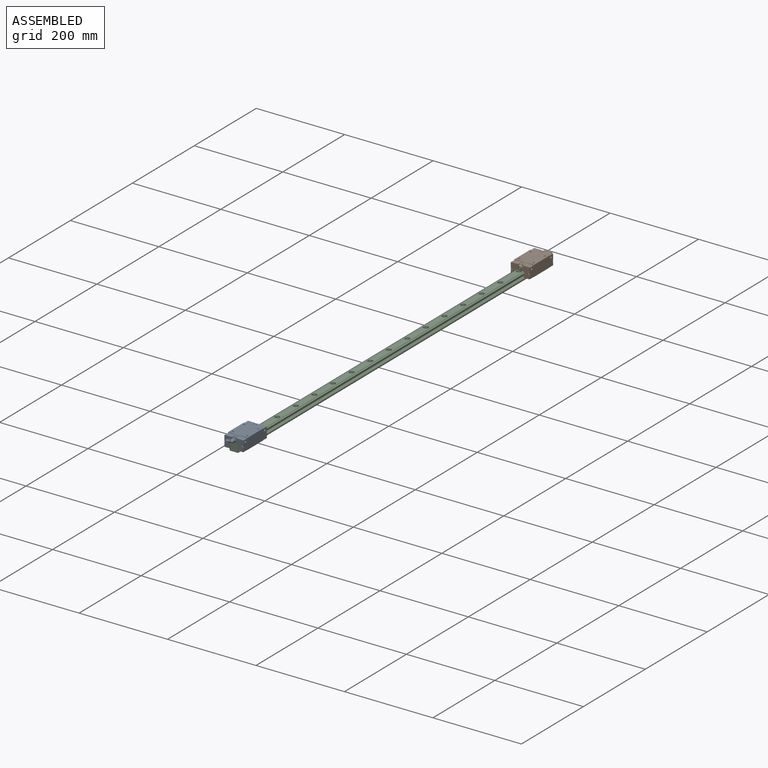
[diagram: assembled view]
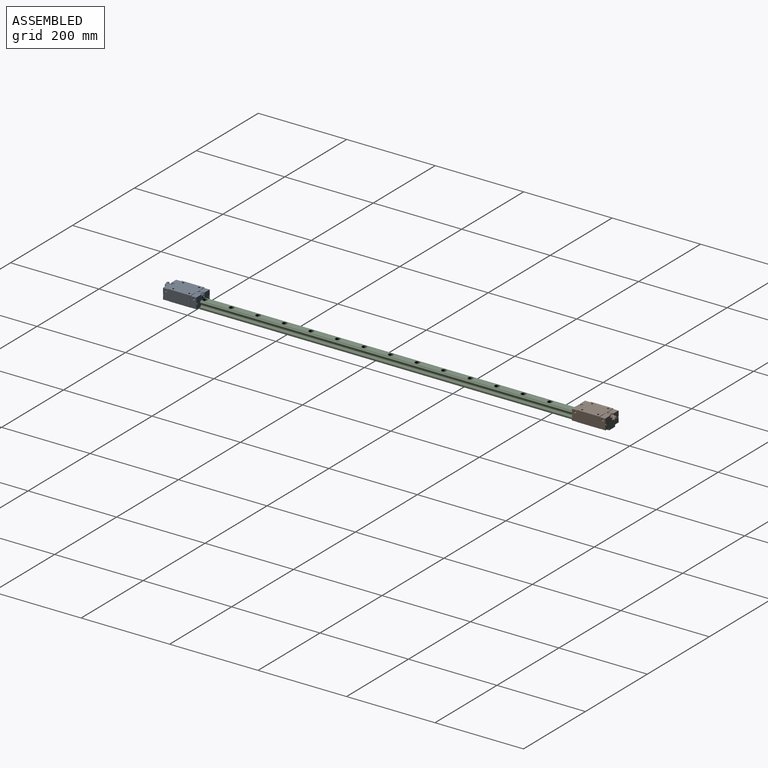
[diagram: assembled view, second angle]
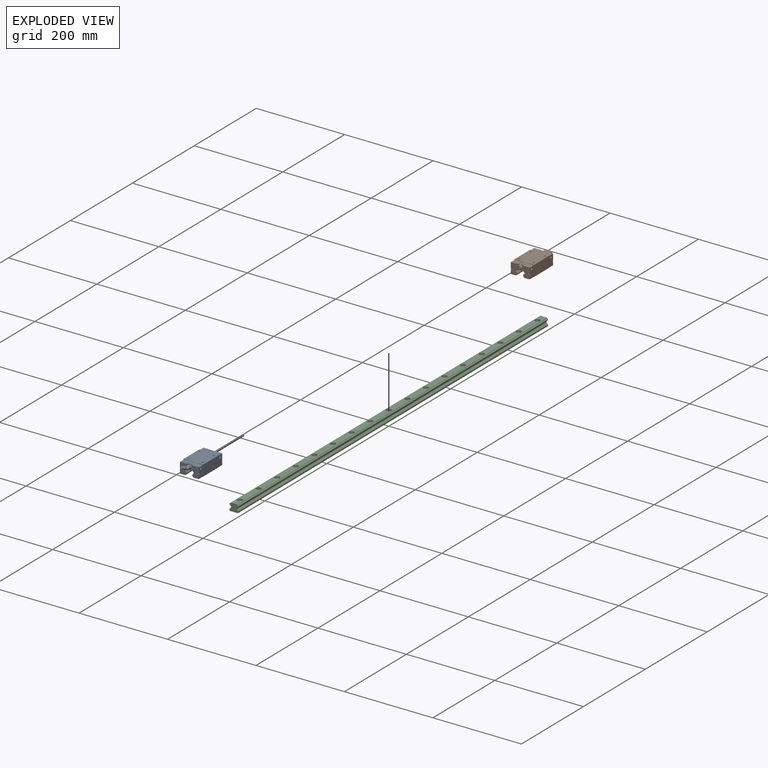
[diagram: exploded view]
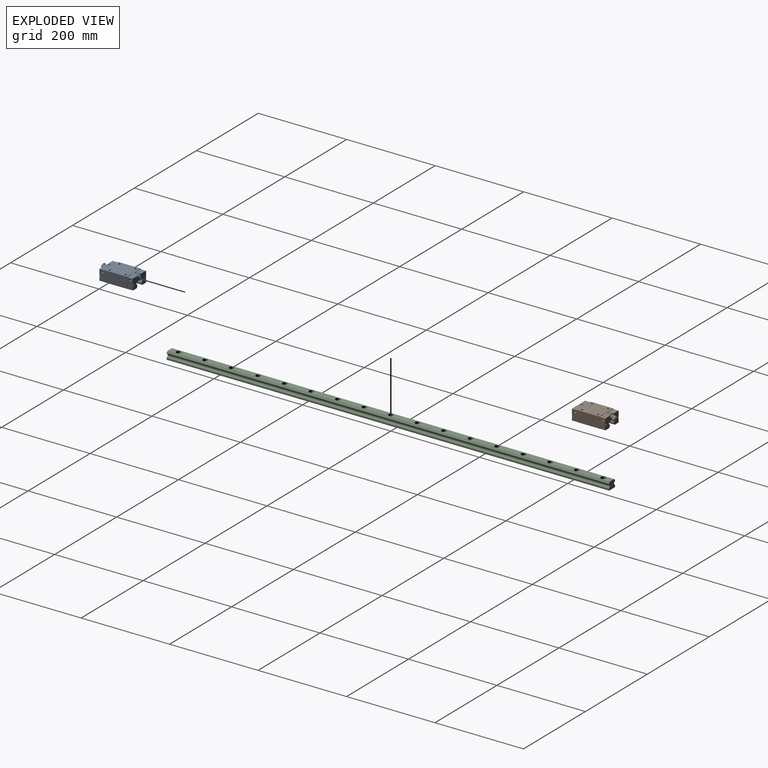
[diagram: exploded view, second angle]
ASSEMBLY  parts=3 mates=2
PART A: 289 faces, bbox 45.6x92x27 mm
  f0: torus R=4.47mm, axis (-0.92,-0.38,0), area 40mm2, adj f19,f20,f22,f141,f142,f143,f144,f145
  f1: cylinder r=2.1mm len=6mm, axis (0,0,-1), area 79.2mm2, adj f2,f264
  f2: cone r=1.05mm half-angle=59deg, axis (0,0,1), area 16.2mm2, adj f1
  f3: cylinder r=2.1mm len=6mm, axis (0,0,-1), area 79.2mm2, adj f4,f264
  f4: cone r=1.05mm half-angle=59deg, axis (0,0,1), area 16.2mm2, adj f3
  f5: cylinder r=2.1mm len=6mm, axis (0,0,-1), area 79.2mm2, adj f6,f263
  f6: cone r=1.05mm half-angle=59deg, axis (0,0,1), area 16.2mm2, adj f5
  f7: cylinder r=2.1mm len=6mm, axis (0,0,-1), area 79.2mm2, adj f8,f263
  f8: cone r=1.05mm half-angle=59deg, axis (0,0,1), area 16.2mm2, adj f7
  f9: cylinder r=3.65mm len=7.3mm, axis (0,0,-1), area 18.2mm2, adj f205,f210
  f10: cylinder r=2.6mm len=6.7mm, axis (-1,0,0), area 109.4mm2, adj f204,f216
  f11: cylinder r=2.6mm len=6.7mm, axis (-1,0,0), area 109.4mm2, adj f203,f212
  f12: cylinder r=2.5mm len=5mm, axis (0,1,0), area 8.6mm2, adj f184,f185,f186,f188
  f13: cylinder r=2.5mm len=5mm, axis (0,1,0), area 8.6mm2, adj f181,f182,f183,f184
  f14: cone r=1.22mm half-angle=5deg, axis (0,1,0), area 19.6mm2, adj f15,f180,f183
  f15: cone r=1.17mm half-angle=73.3deg, axis (0,1,0), area 15.3mm2, adj f14,f168,f169,f170,f171,f172,f173,f174
  f16: cone r=1.22mm half-angle=5deg, axis (0,1,0), area 19.6mm2, adj f17,f166,f188
  f17: cone r=1.17mm half-angle=73.3deg, axis (0,1,0), area 15.3mm2, adj f16,f154,f155,f156,f157,f158,f159,f160
  f18: cone r=2.49mm half-angle=22.5deg, axis (0.92,0.38,0), area 46.5mm2, adj f19,f151
  f19: torus R=0.27mm, axis (-0.92,-0.38,0), area 40mm2, adj f0,f18
  f20: torus R=2.96mm, axis (-0.92,-0.38,0), area 0.2mm2, adj f0,f141,f142
  f21: torus R=2.96mm, axis (-0.92,-0.38,0), area 13.3mm2, adj f141,f142,f143,f144,f145,f146,f152
  f22: torus R=2.96mm, axis (-0.92,-0.38,0), area 0.2mm2, adj f0,f145,f146
  f23: sphere r=3.92mm, area 83.4mm2, adj f24,f152
  f24: cylinder r=3.92mm len=7.85mm, axis (0,1,0), area 87mm2, adj f23,f138,f152
  f25: cone r=4.37mm half-angle=45deg, axis (0,1,0), area 0.9mm2, adj f130,f136,f138
  f26: cone r=4.37mm half-angle=45deg, axis (0,1,0), area 0.9mm2, adj f131,f138,f140
  f27: cone r=4.37mm half-angle=45deg, axis (0,-1,0), area 0.9mm2, adj f130,f136,f192
  f28: cone r=4.37mm half-angle=45deg, axis (0,-1,0), area 0.9mm2, adj f131,f140,f192
  f29: cylinder r=3.65mm len=7.3mm, axis (0,0,-1), area 18.2mm2, adj f101,f114
  f30: cylinder r=2.6mm len=6.7mm, axis (1,0,0), area 109.4mm2, adj f100,f120
  f31: cylinder r=2.6mm len=6.7mm, axis (1,0,0), area 109.4mm2, adj f99,f116
  f32: cylinder r=4.9mm len=9.8mm, axis (0,1,0), area 10.2mm2, adj f33,f88
  f33: torus R=1.93mm, axis (0,-1,0), area 109.6mm2, adj f32,f78,f79,f80,f81,f82,f83
  f34: cylinder r=2.5mm len=5mm, axis (0,-1,0), area 8.6mm2, adj f71,f72,f73,f87
  f35: cylinder r=2.5mm len=5mm, axis (0,-1,0), area 8.6mm2, adj f56,f75,f76,f87
  f36: cone r=1.22mm half-angle=5deg, axis (0,-1,0), area 19.6mm2, adj f37,f57,f71
  f37: cone r=1.17mm half-angle=73.3deg, axis (0,-1,0), area 15.3mm2, adj f36,f59,f60,f61,f62,f63,f64,f65
  f38: cone r=1.22mm half-angle=5deg, axis (0,-1,0), area 19.6mm2, adj f39,f42,f56
  f39: cone r=1.17mm half-angle=73.3deg, axis (0,-1,0), area 15.3mm2, adj f38,f44,f45,f46,f47,f48,f49,f50
  f40: plane 24.4x15.71mm, normal (0,-1,0), area 0.3mm2, adj f74,f91,f92,f93,f96,f110,f112,f116
  f41: plane 24.4x15.71mm, normal (0,-1,0), area 0.3mm2, adj f77,f90,f93,f94,f95,f111,f113,f115
  f42: plane 0.99x0.05mm, normal (0,-1,0), area 0mm2, adj f38,f77
  f43: plane 2.6x2.6mm, normal (0,1,0), area 2.4mm2, adj f44,f45,f46,f47,f48,f49,f50,f51
  f44: plane 1.17x0.58mm, normal (0,0,1), area 0.6mm2, adj f39,f43,f47,f49
  f45: plane 1.17x0.58mm, normal (0,0,-1), area 0.6mm2, adj f39,f43,f46,f48
  f46: plane 1.49x1.47mm, normal (-1,0,0), area 1.3mm2, adj f39,f43,f45,f54
  f47: plane 1.49x1.47mm, normal (-1,0,0), area 1.3mm2, adj f39,f43,f44,f50
  f48: plane 1.49x1.47mm, normal (1,0,0), area 1.3mm2, adj f39,f43,f45,f51
  f49: plane 1.49x1.47mm, normal (1,0,0), area 1.3mm2, adj f39,f43,f44,f52
  f50: plane 1.49x1.47mm, normal (0,0,1), area 1.3mm2, adj f39,f43,f47,f53
  f51: plane 1.49x1.47mm, normal (0,0,-1), area 1.3mm2, adj f39,f43,f48,f55
  f52: plane 1.49x1.47mm, normal (0,0,1), area 1.3mm2, adj f39,f43,f49,f55
  f53: plane 1.17x0.58mm, normal (-1,0,0), area 0.6mm2, adj f39,f43,f50,f54
  f54: plane 1.49x1.47mm, normal (0,0,-1), area 1.3mm2, adj f39,f43,f46,f53
  f55: plane 1.12x0.54mm, normal (1,0,0), area 0.6mm2, adj f39,f43,f51,f52
  f56: plane 5x4.9mm, normal (0,1,0), area 3mm2, adj f35,f38,f75,f76,f77
  f57: plane 0.99x0.05mm, normal (0,-1,0), area 0mm2, adj f36,f74
  f58: plane 2.6x2.6mm, normal (0,1,0), area 2.4mm2, adj f59,f60,f61,f62,f63,f64,f65,f66
  f59: plane 1.17x0.58mm, normal (0,0,1), area 0.6mm2, adj f37,f58,f62,f64
  f60: plane 1.17x0.58mm, normal (0,0,-1), area 0.6mm2, adj f37,f58,f61,f63
  f61: plane 1.49x1.47mm, normal (-1,0,0), area 1.3mm2, adj f37,f58,f60,f69
  f62: plane 1.49x1.47mm, normal (-1,0,0), area 1.3mm2, adj f37,f58,f59,f65
  f63: plane 1.49x1.47mm, normal (1,0,0), area 1.3mm2, adj f37,f58,f60,f66
  f64: plane 1.49x1.47mm, normal (1,0,0), area 1.3mm2, adj f37,f58,f59,f67
  f65: plane 1.49x1.47mm, normal (0,0,1), area 1.3mm2, adj f37,f58,f62,f68
  f66: plane 1.49x1.47mm, normal (0,0,-1), area 1.3mm2, adj f37,f58,f63,f70
  f67: plane 1.49x1.47mm, normal (0,0,1), area 1.3mm2, adj f37,f58,f64,f70
  f68: plane 1.17x0.58mm, normal (-1,0,0), area 0.6mm2, adj f37,f58,f65,f69
  f69: plane 1.49x1.47mm, normal (0,0,-1), area 1.3mm2, adj f37,f58,f61,f68
  f70: plane 1.12x0.54mm, normal (1,0,0), area 0.6mm2, adj f37,f58,f66,f67
  f71: plane 5x4.9mm, normal (0,1,0), area 3mm2, adj f34,f36,f72,f73,f74
  f72: plane 2.4x1.1mm, normal (0,0,-1), area 2.6mm2, adj f34,f71,f74,f87
  f73: plane 2.4x1.1mm, normal (0,0,1), area 2.6mm2, adj f34,f71,f74,f87
  f74: plane 23.4x2.5mm, normal (1,0,0), area 53mm2, adj f40,f57,f71,f72,f73,f87,f92,f96
  f75: plane 2.4x1.1mm, normal (0,0,-1), area 2.6mm2, adj f35,f56,f77,f87
  f76: plane 2.4x1.1mm, normal (0,0,1), area 2.6mm2, adj f35,f56,f77,f87
  f77: plane 23.4x2.5mm, normal (-1,0,0), area 53mm2, adj f41,f42,f56,f75,f76,f87,f94,f95
  f78: plane 2.67x2.48mm, normal (1,0,0), area 5.8mm2, adj f33,f79,f82,f84
  f79: plane 2.5x2mm, normal (0.5,0,0.87), area 5.8mm2, adj f33,f78,f80,f84
  f80: plane 2.5x2mm, normal (-0.5,0,0.87), area 5.8mm2, adj f33,f79,f81,f84
  f81: plane 2.67x2.48mm, normal (-1,0,0), area 5.8mm2, adj f33,f80,f83,f84
  f82: plane 2.5x2mm, normal (0.5,0,-0.87), area 5.8mm2, adj f33,f78,f83,f84
  f83: plane 2.5x2mm, normal (-0.5,0,-0.87), area 5.8mm2, adj f33,f81,f82,f84
  f84: plane 4.62x4mm, normal (0,1,0), area 13.9mm2, adj f78,f79,f80,f81,f82,f83
  f85: plane 5x1.1mm, normal (1,0,0), area 5.5mm2, adj f87,f88,f89,f93
  f86: plane 5x1.1mm, normal (-1,0,0), area 5.5mm2, adj f87,f88,f89,f93
  f87: plane 43x24.4mm, normal (0,1,0), area 707.4mm2, adj f34,f35,f72,f73,f74,f75,f76,f77
  f88: plane 10x10mm, normal (0,1,0), area 13.8mm2, adj f32,f85,f86,f89,f93
  f89: cylinder r=5mm len=10mm, axis (0,-1,0), area 17.3mm2, adj f85,f86,f87,f88
  f90: plane 11.53x2.5mm, normal (0,0,-1), area 28.8mm2, adj f41,f87,f95,f220
  f91: plane 11.53x2.5mm, normal (0,0,-1), area 28.8mm2, adj f40,f87,f96,f246
  f92: plane 2.5x0.5mm, normal (0.71,0,0.71), area 1.8mm2, adj f40,f74,f87,f93
  f93: plane 42x2.5mm, normal (0,0,1), area 94mm2, adj f40,f41,f85,f86,f87,f88,f92,f94
  f94: plane 2.5x0.5mm, normal (-0.71,0,0.71), area 1.8mm2, adj f41,f77,f87,f93
  f95: plane 2.5x0.5mm, normal (-0.71,0,-0.71), area 1.8mm2, adj f41,f77,f87,f90
  f96: plane 2.5x0.5mm, normal (0.71,0,-0.71), area 1.8mm2, adj f40,f74,f87,f91
  f97: plane 6.33x0.8mm, normal (0,-1,0), area 4.7mm2, adj f110,f246,f248,f250
  f98: plane 6.33x0.8mm, normal (0,-1,0), area 4.7mm2, adj f111,f220,f249,f251
  f99: plane 5.2x5.2mm, normal (1,0,0), area 21.2mm2, adj f31
  f100: plane 5.2x5.2mm, normal (-1,0,0), area 21.2mm2, adj f30
  f101: plane 7.3x7.3mm, normal (0,0,1), area 41.9mm2, adj f29
  f102: cylinder r=0.5mm len=75.5mm, axis (0,-1,0), area 31.2mm2, adj f87,f184,f241,f242
  f103: cylinder r=0.5mm len=75.5mm, axis (0,-1,0), area 22.5mm2, adj f87,f184,f240,f241
  f104: cylinder r=0.5mm len=75.5mm, axis (0,-1,0), area 22.3mm2, adj f87,f184,f235,f236
  f105: cylinder r=0.5mm len=75.5mm, axis (0,-1,0), area 31mm2, adj f87,f184,f234,f235
  f106: cylinder r=0.5mm len=75.5mm, axis (0,-1,0), area 31mm2, adj f87,f184,f231,f232
  f107: cylinder r=0.5mm len=75.5mm, axis (0,-1,0), area 22.3mm2, adj f87,f184,f230,f231
  f108: cylinder r=0.5mm len=75.5mm, axis (0,-1,0), area 22.5mm2, adj f87,f184,f225,f226
  f109: cylinder r=0.5mm len=75.5mm, axis (0,-1,0), area 31.2mm2, adj f87,f184,f224,f225
  f110: plane 11.53x10mm, normal (0,0,-1), area 115.3mm2, adj f40,f97,f122,f246,f254
  f111: plane 11.53x10mm, normal (0,0,-1), area 115.3mm2, adj f41,f98,f121,f220,f254
  f112: plane 10x0.8mm, normal (0.71,0,0.71), area 11.2mm2, adj f40,f114,f118,f123,f254
  f113: plane 10x0.8mm, normal (-0.71,0,0.71), area 11.2mm2, adj f41,f114,f115,f123,f254
  f114: plane 10x10mm, normal (0,0,1), area 58.1mm2, adj f29,f112,f113,f123,f254
  f115: plane 15.2x10mm, normal (0,0,1), area 152mm2, adj f41,f113,f119,f254
  f116: plane 23.39x10mm, normal (1,0,0), area 212.7mm2, adj f31,f40,f117,f122,f254
  f117: plane 10x0.5mm, normal (0.71,0,0.71), area 7.1mm2, adj f40,f116,f118,f254
  f118: plane 15.2x10mm, normal (0,0,1), area 152mm2, adj f40,f112,f117,f254
  f119: plane 10x0.5mm, normal (-0.71,0,0.71), area 7.1mm2, adj f41,f115,f120,f254
  f120: plane 23.39x10mm, normal (-1,0,0), area 212.7mm2, adj f30,f41,f119,f121,f254
  f121: plane 10x0.5mm, normal (-0.71,0,-0.71), area 7.1mm2, adj f41,f111,f120,f254
  f122: plane 10x0.5mm, normal (0.71,0,-0.71), area 7.1mm2, adj f40,f110,f116,f254
  f123: plane 11.58x0.79mm, normal (0,1,0), area 8.5mm2, adj f93,f112,f113,f114
  f124: plane 24.4x15.71mm, normal (0,1,0), area 0.3mm2, adj f189,f195,f196,f197,f200,f206,f208,f212
  f125: plane 24.4x15.71mm, normal (0,1,0), area 0.3mm2, adj f187,f194,f197,f198,f199,f207,f209,f211
  f126: cone r=4.37mm half-angle=45deg, axis (0,-1,0), area 0.9mm2, adj f136,f139,f192
  f127: cone r=4.37mm half-angle=45deg, axis (0,-1,0), area 0.9mm2, adj f139,f140,f192
  f128: cone r=4.37mm half-angle=45deg, axis (0,-1,0), area 0.9mm2, adj f131,f137,f192
  f129: cone r=4.37mm half-angle=45deg, axis (0,-1,0), area 0.9mm2, adj f130,f137,f192
  f130: plane 4.15x4.15mm, normal (0.87,0,-0.5), area 17.3mm2, adj f25,f27,f129,f135,f136,f137,f138,f192
  f131: plane 4.15x4.15mm, normal (-0.87,0,-0.5), area 17.3mm2, adj f26,f28,f128,f132,f137,f138,f140,f192
  f132: cone r=4.37mm half-angle=45deg, axis (0,1,0), area 0.9mm2, adj f131,f137,f138
  f133: cone r=4.37mm half-angle=45deg, axis (0,1,0), area 0.9mm2, adj f138,f139,f140
  f134: cone r=4.37mm half-angle=45deg, axis (0,1,0), area 0.9mm2, adj f136,f138,f139
  f135: cone r=4.37mm half-angle=45deg, axis (0,1,0), area 0.9mm2, adj f130,f137,f138
  f136: plane 4.15x4.15mm, normal (0.87,0,0.5), area 17.3mm2, adj f25,f27,f126,f130,f134,f138,f139,f192
  f137: plane 4.77x4.15mm, normal (0,0,-1), area 17.3mm2, adj f128,f129,f130,f131,f132,f135,f138,f192
  f138: plane 8.24x8mm, normal (0,-1,0), area 4mm2, adj f24,f25,f26,f130,f131,f132,f133,f134
  f139: plane 4.77x4.15mm, normal (0,0,1), area 17.3mm2, adj f126,f127,f133,f134,f136,f138,f140,f192
  f140: plane 4.15x4.15mm, normal (-0.87,0,0.5), area 17.3mm2, adj f26,f28,f127,f131,f133,f138,f139,f192
  f141: plane 3.49x2.46mm, normal (0.33,-0.8,0.5), area 7.2mm2, adj f0,f20,f21,f142,f144,f147
  f142: plane 3.49x2.46mm, normal (0.33,-0.8,-0.5), area 7.2mm2, adj f0,f20,f21,f141,f143,f150
  f143: plane 4.28x2.94mm, normal (0,0,-1), area 7.2mm2, adj f0,f21,f142,f145,f149,f150
  f144: plane 4.28x2.94mm, normal (0,0,1), area 7.2mm2, adj f0,f21,f141,f146,f147,f148
  f145: plane 3.49x2.46mm, normal (-0.33,0.8,-0.5), area 7.2mm2, adj f0,f21,f22,f143,f146,f149
  f146: plane 3.49x2.46mm, normal (-0.33,0.8,0.5), area 7.2mm2, adj f0,f21,f22,f144,f145,f148
  f147: torus R=2.96mm, axis (-0.92,-0.38,0), area 0.2mm2, adj f0,f141,f144
  f148: torus R=2.96mm, axis (-0.92,-0.38,0), area 0.2mm2, adj f0,f144,f146
  f149: torus R=2.96mm, axis (-0.92,-0.38,0), area 0.2mm2, adj f0,f143,f145
  f150: torus R=2.96mm, axis (-0.92,-0.38,0), area 0.2mm2, adj f0,f142,f143
  f151: plane 3.84x3.55mm, normal (-0.92,-0.38,0), area 11.6mm2, adj f18
  f152: plane 7.5x7.05mm, normal (0.92,0.38,0), area 13.6mm2, adj f21,f23,f24
  f153: plane 2.6x2.6mm, normal (0,-1,0), area 2.4mm2, adj f154,f155,f156,f157,f158,f159,f160,f161
  f154: plane 1.17x0.58mm, normal (0,0,1), area 0.6mm2, adj f17,f153,f157,f159
  f155: plane 1.17x0.58mm, normal (0,0,-1), area 0.6mm2, adj f17,f153,f156,f158
  f156: plane 1.49x1.47mm, normal (1,0,0), area 1.3mm2, adj f17,f153,f155,f164
  f157: plane 1.49x1.47mm, normal (1,0,0), area 1.3mm2, adj f17,f153,f154,f160
  f158: plane 1.49x1.47mm, normal (-1,0,0), area 1.3mm2, adj f17,f153,f155,f161
  f159: plane 1.49x1.47mm, normal (-1,0,0), area 1.3mm2, adj f17,f153,f154,f162
  f160: plane 1.49x1.47mm, normal (0,0,1), area 1.3mm2, adj f17,f153,f157,f163
  f161: plane 1.49x1.47mm, normal (0,0,-1), area 1.3mm2, adj f17,f153,f158,f165
  f162: plane 1.49x1.47mm, normal (0,0,1), area 1.3mm2, adj f17,f153,f159,f165
  f163: plane 1.17x0.58mm, normal (1,0,0), area 0.6mm2, adj f17,f153,f160,f164
  f164: plane 1.49x1.47mm, normal (0,0,-1), area 1.3mm2, adj f17,f153,f156,f163
  f165: plane 1.12x0.54mm, normal (-1,0,0), area 0.6mm2, adj f17,f153,f161,f162
  f166: plane 0.99x0.05mm, normal (0,1,0), area 0mm2, adj f16,f187
  f167: plane 2.6x2.6mm, normal (0,-1,0), area 2.4mm2, adj f168,f169,f170,f171,f172,f173,f174,f175
  f168: plane 1.17x0.58mm, normal (0,0,1), area 0.6mm2, adj f15,f167,f171,f173
  f169: plane 1.17x0.58mm, normal (0,0,-1), area 0.6mm2, adj f15,f167,f170,f172
  f170: plane 1.49x1.47mm, normal (1,0,0), area 1.3mm2, adj f15,f167,f169,f178
  f171: plane 1.49x1.47mm, normal (1,0,0), area 1.3mm2, adj f15,f167,f168,f174
  f172: plane 1.49x1.47mm, normal (-1,0,0), area 1.3mm2, adj f15,f167,f169,f175
  f173: plane 1.49x1.47mm, normal (-1,0,0), area 1.3mm2, adj f15,f167,f168,f176
  f174: plane 1.49x1.47mm, normal (0,0,1), area 1.3mm2, adj f15,f167,f171,f177
  f175: plane 1.49x1.47mm, normal (0,0,-1), area 1.3mm2, adj f15,f167,f172,f179
  f176: plane 1.49x1.47mm, normal (0,0,1), area 1.3mm2, adj f15,f167,f173,f179
  f177: plane 1.17x0.58mm, normal (1,0,0), area 0.6mm2, adj f15,f167,f174,f178
  f178: plane 1.49x1.47mm, normal (0,0,-1), area 1.3mm2, adj f15,f167,f170,f177
  f179: plane 1.12x0.54mm, normal (-1,0,0), area 0.6mm2, adj f15,f167,f175,f176
  f180: plane 0.99x0.05mm, normal (0,1,0), area 0mm2, adj f14,f189
  f181: plane 2.4x1.1mm, normal (0,0,1), area 2.6mm2, adj f13,f183,f184,f189
  f182: plane 2.4x1.1mm, normal (0,0,-1), area 2.6mm2, adj f13,f183,f184,f189
  f183: plane 5x4.9mm, normal (0,-1,0), area 3mm2, adj f13,f14,f181,f182,f189
  f184: plane 43x24.4mm, normal (0,-1,0), area 707.4mm2, adj f12,f13,f102,f103,f104,f105,f106,f107
  f185: plane 2.4x1.1mm, normal (0,0,-1), area 2.6mm2, adj f12,f184,f187,f188
  f186: plane 2.4x1.1mm, normal (0,0,1), area 2.6mm2, adj f12,f184,f187,f188
  f187: plane 23.4x2.5mm, normal (1,0,0), area 53mm2, adj f125,f166,f184,f185,f186,f188,f198,f199
  f188: plane 5x4.9mm, normal (0,-1,0), area 3mm2, adj f12,f16,f185,f186,f187
  f189: plane 23.4x2.5mm, normal (-1,0,0), area 53mm2, adj f124,f180,f181,f182,f183,f184,f196,f200
  f190: plane 5x1.1mm, normal (-1,0,0), area 5.5mm2, adj f184,f192,f193,f197
  f191: plane 5x1.1mm, normal (1,0,0), area 5.5mm2, adj f184,f192,f193,f197
  f192: plane 10x10mm, normal (0,-1,0), area 36.9mm2, adj f27,f28,f126,f127,f128,f129,f130,f131
  f193: cylinder r=5mm len=10mm, axis (0,1,0), area 17.3mm2, adj f184,f190,f191,f192
  f194: plane 11.53x2.5mm, normal (0,0,-1), area 28.8mm2, adj f125,f184,f199,f246
  f195: plane 11.53x2.5mm, normal (0,0,-1), area 28.8mm2, adj f124,f184,f200,f220
  f196: plane 2.5x0.5mm, normal (-0.71,0,0.71), area 1.8mm2, adj f124,f184,f189,f197
  f197: plane 42x2.5mm, normal (0,0,1), area 94mm2, adj f124,f125,f184,f190,f191,f192,f196,f198
  f198: plane 2.5x0.5mm, normal (0.71,0,0.71), area 1.8mm2, adj f125,f184,f187,f197
  f199: plane 2.5x0.5mm, normal (0.71,0,-0.71), area 1.8mm2, adj f125,f184,f187,f194
  f200: plane 2.5x0.5mm, normal (-0.71,0,-0.71), area 1.8mm2, adj f124,f184,f189,f195
  f201: plane 6.33x0.8mm, normal (0,1,0), area 4.7mm2, adj f206,f220,f249,f251
  f202: plane 6.33x0.8mm, normal (0,1,0), area 4.7mm2, adj f207,f246,f248,f250
  f203: plane 5.2x5.2mm, normal (-1,0,0), area 21.2mm2, adj f11
  f204: plane 5.2x5.2mm, normal (1,0,0), area 21.2mm2, adj f10
  f205: plane 7.3x7.3mm, normal (0,0,1), area 41.9mm2, adj f9
  f206: plane 11.53x10mm, normal (0,0,-1), area 115.3mm2, adj f124,f201,f218,f220,f247
  f207: plane 11.53x10mm, normal (0,0,-1), area 115.3mm2, adj f125,f202,f217,f246,f247
  f208: plane 10x0.8mm, normal (-0.71,0,0.71), area 11.2mm2, adj f124,f210,f214,f219,f247
  f209: plane 10x0.8mm, normal (0.71,0,0.71), area 11.2mm2, adj f125,f210,f211,f219,f247
  f210: plane 10x10mm, normal (0,0,1), area 58.1mm2, adj f9,f208,f209,f219,f247
  f211: plane 15.2x10mm, normal (0,0,1), area 152mm2, adj f125,f209,f215,f247
  f212: plane 23.39x10mm, normal (-1,0,0), area 212.7mm2, adj f11,f124,f213,f218,f247
  f213: plane 10x0.5mm, normal (-0.71,0,0.71), area 7.1mm2, adj f124,f212,f214,f247
  f214: plane 15.2x10mm, normal (0,0,1), area 152mm2, adj f124,f208,f213,f247
  f215: plane 10x0.5mm, normal (0.71,0,0.71), area 7.1mm2, adj f125,f211,f216,f247
  f216: plane 23.39x10mm, normal (1,0,0), area 212.7mm2, adj f10,f125,f215,f217,f247
  f217: plane 10x0.5mm, normal (0.71,0,-0.71), area 7.1mm2, adj f125,f207,f216,f247
  f218: plane 10x0.5mm, normal (-0.71,0,-0.71), area 7.1mm2, adj f124,f206,f212,f247
  f219: plane 11.58x0.79mm, normal (0,-1,0), area 8.5mm2, adj f197,f208,f209,f210
  f220: plane 75.5x2.58mm, normal (0.71,0,-0.71), area 218mm2, adj f41,f87,f90,f98,f111,f124,f184,f195
  f221: cylinder r=1mm len=75.5mm, axis (0,1,0), area 59.3mm2, adj f87,f184,f220,f222
  f222: plane 75.5x1.56mm, normal (1,0,0), area 117.8mm2, adj f87,f184,f221,f223
  f223: cylinder r=1mm len=75.5mm, axis (0,1,0), area 59.3mm2, adj f87,f184,f222,f224
  f224: plane 75.5x0.74mm, normal (0.71,0,0.71), area 78.7mm2, adj f87,f109,f184,f223
  f225: cylinder r=2mm len=75.5mm, axis (0,1,0), area 179.6mm2, adj f87,f108,f109,f184
  f226: plane 75.5x0.16mm, normal (0.71,0,0.71), area 17.4mm2, adj f87,f108,f184,f227
  f227: cylinder r=0.5mm len=75.5mm, axis (0,1,0), area 29.6mm2, adj f87,f184,f226,f228
  f228: plane 75.5x1.06mm, normal (1,0,0), area 79.8mm2, adj f87,f184,f227,f229
  f229: cylinder r=0.5mm len=75.5mm, axis (0,1,0), area 29.6mm2, adj f87,f184,f228,f230
  f230: plane 75.5x0.18mm, normal (0.71,0,-0.71), area 18.7mm2, adj f87,f107,f184,f229
  f231: cylinder r=2mm len=75.5mm, axis (0,1,0), area 178.2mm2, adj f87,f106,f107,f184
  f232: plane 75.5x0.4mm, normal (0.71,0,-0.71), area 42.9mm2, adj f87,f106,f184,f233
  f233: plane 75.5x14.46mm, normal (0,0,-1), area 1091.8mm2, adj f87,f184,f232,f234
  f234: plane 75.5x0.4mm, normal (-0.71,0,-0.71), area 42.9mm2, adj f87,f105,f184,f233
  f235: cylinder r=2mm len=75.5mm, axis (0,1,0), area 178.2mm2, adj f87,f104,f105,f184
  f236: plane 75.5x0.18mm, normal (-0.71,0,-0.71), area 18.7mm2, adj f87,f104,f184,f237
  f237: cylinder r=0.5mm len=75.5mm, axis (0,1,0), area 29.6mm2, adj f87,f184,f236,f238
  f238: plane 75.5x1.06mm, normal (-1,0,0), area 79.8mm2, adj f87,f184,f237,f239
  f239: cylinder r=0.5mm len=75.5mm, axis (0,1,0), area 29.6mm2, adj f87,f184,f238,f240
  f240: plane 75.5x0.16mm, normal (-0.71,0,0.71), area 17.4mm2, adj f87,f103,f184,f239
  f241: cylinder r=2mm len=75.5mm, axis (0,1,0), area 179.6mm2, adj f87,f102,f103,f184
  f242: plane 75.5x0.74mm, normal (-0.71,0,0.71), area 78.7mm2, adj f87,f102,f184,f243
  f243: cylinder r=1mm len=75.5mm, axis (0,1,0), area 59.3mm2, adj f87,f184,f242,f244
  f244: plane 75.5x1.56mm, normal (-1,0,0), area 117.8mm2, adj f87,f184,f243,f245
  f245: cylinder r=1mm len=75.5mm, axis (0,1,0), area 59.3mm2, adj f87,f184,f244,f246
  f246: plane 75.5x2.58mm, normal (-0.71,0,-0.71), area 218mm2, adj f40,f87,f91,f97,f110,f125,f184,f194
  f247: plane 44x25.4mm, normal (0,-1,0), area 47.9mm2, adj f206,f207,f208,f209,f210,f211,f212,f213
  f248: plane 50.5x6.33mm, normal (0,0,-1), area 319.6mm2, adj f97,f202,f246,f250
  f249: plane 50.5x6.33mm, normal (0,0,-1), area 319.6mm2, adj f98,f201,f220,f251
  f250: plane 50.5x0.8mm, normal (-1,0,0), area 40.4mm2, adj f97,f202,f247,f248,f253,f254
  f251: plane 50.5x0.8mm, normal (1,0,0), area 40.4mm2, adj f98,f201,f247,f249,f252,f254
  f252: plane 50.5x6.5mm, normal (0,0,-1), area 328.2mm2, adj f247,f251,f254,f271
  f253: plane 50.5x6.5mm, normal (0,0,-1), area 328.2mm2, adj f247,f250,f254,f270
  f254: plane 44x25.4mm, normal (0,1,0), area 47.9mm2, adj f110,f111,f112,f113,f114,f115,f116,f117
  f255: plane 50.5x0.5mm, normal (-0.71,0,0.71), area 35.7mm2, adj f247,f254,f256,f258
  f256: plane 50.5x10mm, normal (0,0,1), area 505mm2, adj f247,f254,f255,f257
  f257: plane 50.5x0.5mm, normal (0.71,0,0.71), area 35.7mm2, adj f247,f254,f256,f261
  f258: plane 50.5x5.13mm, normal (0,0,1), area 258.8mm2, adj f247,f254,f255,f262
  f259: plane 50.5x7.5mm, normal (-1,0,0), area 378.7mm2, adj f247,f254,f265,f267
  f260: plane 50.5x0.5mm, normal (-0.71,0,0.71), area 35.7mm2, adj f247,f254,f261,f263
  f261: plane 50.5x5.13mm, normal (0,0,1), area 258.8mm2, adj f247,f254,f257,f260
  f262: plane 50.5x0.5mm, normal (0.71,0,0.71), area 35.7mm2, adj f247,f254,f258,f264
  f263: plane 50.5x10.38mm, normal (0,0,1), area 496.2mm2, adj f5,f7,f247,f254,f260,f268
  f264: plane 50.5x10.38mm, normal (0,0,1), area 496.2mm2, adj f1,f3,f247,f254,f262,f267
  f265: plane 50.5x0.4mm, normal (0,0,-1), area 20.2mm2, adj f247,f254,f259,f266
  f266: plane 50.5x17.3mm, normal (-1,0,0), area 873.6mm2, adj f247,f254,f265,f271
  f267: plane 50.5x0.5mm, normal (-0.71,0,0.71), area 35.7mm2, adj f247,f254,f259,f264
  f268: plane 50.5x0.5mm, normal (0.71,0,0.71), area 35.7mm2, adj f247,f254,f263,f269
  f269: plane 50.5x24.4mm, normal (1,0,0), area 1232.2mm2, adj f247,f254,f268,f270
  f270: plane 50.5x0.5mm, normal (0.71,0,-0.71), area 35.7mm2, adj f247,f253,f254,f269
  f271: plane 50.5x0.1mm, normal (-0.71,0,-0.71), area 7.1mm2, adj f247,f252,f254,f266
  f272: cylinder r=3mm len=6mm, axis (0,1,0), area 26.4mm2, adj f274,f275
  f273: cylinder r=3.2mm len=6.4mm, axis (0,1,0), area 28.1mm2, adj f274,f275
  f274: plane 6.4x6.4mm, normal (0,-1,0), area 3.9mm2, adj f272,f273
  f275: plane 6.4x6.4mm, normal (0,1,0), area 3.9mm2, adj f272,f273
  f276: cylinder r=1.25mm len=2.5mm, axis (0,1,0), area 3.9mm2, adj f277,f279
  f277: cone r=0.62mm half-angle=17deg, axis (0,-1,0), area 6.6mm2, adj f276,f280
  f278: cylinder r=1.5mm len=3mm, axis (0,-1,0), area 13.2mm2, adj f279,f280
  f279: plane 3x3mm, normal (0,1,0), area 2.2mm2, adj f276,f278
  f280: plane 3x3mm, normal (0,-1,0), area 4.1mm2, adj f277,f278
  f281: cylinder r=1.5mm len=3mm, axis (0,-1,0), area 13.2mm2, adj f284,f285
  f282: cone r=0.62mm half-angle=17deg, axis (0,-1,0), area 6.6mm2, adj f283,f284
  f283: cylinder r=1.25mm len=2.5mm, axis (0,1,0), area 3.9mm2, adj f282,f285
  f284: plane 3x3mm, normal (0,-1,0), area 4.1mm2, adj f281,f282
  f285: plane 3x3mm, normal (0,1,0), area 2.2mm2, adj f281,f283
  f286: cylinder r=3.2mm len=6.4mm, axis (0,-1,0), area 28.1mm2, adj f287,f288
  f287: plane 6.4x6.4mm, normal (0,1,0), area 32.2mm2, adj f286
  f288: plane 6.4x6.4mm, normal (0,-1,0), area 32.2mm2, adj f286
PART B: same geometry as A
PART C: 95 faces, bbox 20x1000x17.5 mm
  f0: plane 1000x1mm, normal (-0.71,0,-0.71), area 1414.2mm2, adj f1,f41,f42,f43
  f1: plane 1000x18mm, normal (0,0,-1), area 17418.4mm2, adj f0,f2,f42,f43,f44,f47,f50,f53
  f2: plane 1000x1mm, normal (0.71,0,-0.71), area 1414.2mm2, adj f1,f3,f42,f43
  f3: plane 1000x2.66mm, normal (1,0,0), area 2656.5mm2, adj f2,f4,f42,f43
  f4: cylinder r=1mm len=1000mm, axis (0,1,0), area 785.4mm2, adj f3,f5,f42,f43
  f5: plane 1000x2.81mm, normal (0.71,0,0.71), area 3979.9mm2, adj f4,f6,f42,f43
  f6: cylinder r=1mm len=1000mm, axis (0,1,0), area 785.4mm2, adj f5,f7,f42,f43
  f7: plane 1000x1.56mm, normal (1,0,0), area 1560.1mm2, adj f6,f8,f42,f43
  f8: cylinder r=1mm len=1000mm, axis (0,1,0), area 785.4mm2, adj f7,f9,f42,f43
  f9: plane 1000x0.74mm, normal (0.71,0,-0.71), area 1042.7mm2, adj f8,f10,f42,f43
  f10: cylinder r=0.5mm len=1000mm, axis (0,1,0), area 413.2mm2, adj f9,f11,f42,f43
  f11: cylinder r=2mm len=1000mm, axis (0,1,0), area 2379.3mm2, adj f10,f12,f42,f43
  f12: cylinder r=0.5mm len=1000mm, axis (0,1,0), area 297.4mm2, adj f11,f13,f42,f43
  f13: plane 1000x0.16mm, normal (0.71,0,-0.71), area 230.4mm2, adj f12,f14,f42,f43
  f14: cylinder r=0.5mm len=1000mm, axis (0,1,0), area 392.7mm2, adj f13,f15,f42,f43
  f15: plane 1000x1.06mm, normal (1,0,0), area 1057.2mm2, adj f14,f16,f42,f43
  f16: cylinder r=0.5mm len=1000mm, axis (0,1,0), area 392.7mm2, adj f15,f17,f42,f43
  f17: plane 1000x0.18mm, normal (0.71,0,0.71), area 247.6mm2, adj f16,f18,f42,f43
  f18: cylinder r=0.5mm len=1000mm, axis (0,1,0), area 295mm2, adj f17,f19,f42,f43
  f19: cylinder r=2mm len=1000mm, axis (0,1,0), area 2360.3mm2, adj f18,f20,f42,f43
  f20: cylinder r=0.5mm len=1000mm, axis (0,1,0), area 410mm2, adj f19,f21,f42,f43
  f21: plane 1000x0.4mm, normal (0.71,0,0.71), area 568.2mm2, adj f20,f22,f42,f43
  f22: plane 1000x14.46mm, normal (0,0,1), area 12771.6mm2, adj f21,f23,f42,f43,f46,f49,f52,f55
  f23: plane 1000x0.4mm, normal (-0.71,0,0.71), area 568.2mm2, adj f22,f24,f42,f43
  f24: cylinder r=0.5mm len=1000mm, axis (0,1,0), area 410mm2, adj f23,f25,f42,f43
  f25: cylinder r=2mm len=1000mm, axis (0,1,0), area 2360.3mm2, adj f24,f26,f42,f43
  f26: cylinder r=0.5mm len=1000mm, axis (0,1,0), area 295mm2, adj f25,f27,f42,f43
  f27: plane 1000x0.18mm, normal (-0.71,0,0.71), area 247.6mm2, adj f26,f28,f42,f43
  f28: cylinder r=0.5mm len=1000mm, axis (0,1,0), area 392.7mm2, adj f27,f29,f42,f43
  f29: plane 1000x1.06mm, normal (-1,0,0), area 1057.2mm2, adj f28,f30,f42,f43
  f30: cylinder r=0.5mm len=1000mm, axis (0,1,0), area 392.7mm2, adj f29,f31,f42,f43
  f31: plane 1000x0.16mm, normal (-0.71,0,-0.71), area 230.4mm2, adj f30,f32,f42,f43
  f32: cylinder r=0.5mm len=1000mm, axis (0,1,0), area 297.4mm2, adj f31,f33,f42,f43
  f33: cylinder r=2mm len=1000mm, axis (0,1,0), area 2379.3mm2, adj f32,f34,f42,f43
  f34: cylinder r=0.5mm len=1000mm, axis (0,1,0), area 413.2mm2, adj f33,f35,f42,f43
  f35: plane 1000x0.74mm, normal (-0.71,0,-0.71), area 1042.7mm2, adj f34,f36,f42,f43
  f36: cylinder r=1mm len=1000mm, axis (0,1,0), area 785.4mm2, adj f35,f37,f42,f43
  f37: plane 1000x1.56mm, normal (-1,0,0), area 1560.1mm2, adj f36,f38,f42,f43
  f38: cylinder r=1mm len=1000mm, axis (0,1,0), area 785.4mm2, adj f37,f39,f42,f43
  f39: plane 1000x2.81mm, normal (-0.71,0,0.71), area 3979.9mm2, adj f38,f40,f42,f43
  f40: cylinder r=1mm len=1000mm, axis (0,1,0), area 785.4mm2, adj f39,f41,f42,f43
  f41: plane 1000x2.66mm, normal (-1,0,0), area 2656.5mm2, adj f0,f40,f42,f43
  f42: plane 20x17.5mm, normal (0,-1,0), area 299.1mm2, adj f0,f1,f2,f3,f4,f5,f6,f7
  f43: plane 20x17.5mm, normal (0,1,0), area 299.1mm2, adj f0,f1,f2,f3,f4,f5,f6,f7
  f44: cylinder r=3.3mm len=11.5mm, axis (0,0,1), area 238.4mm2, adj f1,f45
  f45: plane 11.25x11.25mm, normal (0,0,1), area 65.2mm2, adj f44,f46
  f46: cylinder r=5.62mm len=11.25mm, axis (0,0,1), area 212.1mm2, adj f22,f45
  f47: cylinder r=3.3mm len=11.5mm, axis (0,0,1), area 238.4mm2, adj f1,f48
  f48: plane 11.25x11.25mm, normal (0,0,1), area 65.2mm2, adj f47,f49
  f49: cylinder r=5.62mm len=11.25mm, axis (0,0,1), area 212.1mm2, adj f22,f48
  f50: cylinder r=3.3mm len=11.5mm, axis (0,0,1), area 238.4mm2, adj f1,f51
  f51: plane 11.25x11.25mm, normal (0,0,1), area 65.2mm2, adj f50,f52
  f52: cylinder r=5.62mm len=11.25mm, axis (0,0,1), area 212.1mm2, adj f22,f51
  f53: cylinder r=3.3mm len=11.5mm, axis (0,0,1), area 238.4mm2, adj f1,f54
  f54: plane 11.25x11.25mm, normal (0,0,1), area 65.2mm2, adj f53,f55
  f55: cylinder r=5.62mm len=11.25mm, axis (0,0,1), area 212.1mm2, adj f22,f54
  f56: cylinder r=3.3mm len=11.5mm, axis (0,0,1), area 238.4mm2, adj f1,f57
  f57: plane 11.25x11.25mm, normal (0,0,1), area 65.2mm2, adj f56,f58
  f58: cylinder r=5.62mm len=11.25mm, axis (0,0,1), area 212.1mm2, adj f22,f57
  f59: cylinder r=3.3mm len=11.5mm, axis (0,0,1), area 238.4mm2, adj f1,f60
  f60: plane 11.25x11.25mm, normal (0,0,1), area 65.2mm2, adj f59,f61
  f61: cylinder r=5.62mm len=11.25mm, axis (0,0,1), area 212.1mm2, adj f22,f60
  f62: cylinder r=3.3mm len=11.5mm, axis (0,0,1), area 238.4mm2, adj f1,f63
  f63: plane 11.25x11.25mm, normal (0,0,1), area 65.2mm2, adj f62,f64
  f64: cylinder r=5.62mm len=11.25mm, axis (0,0,1), area 212.1mm2, adj f22,f63
  f65: cylinder r=3.3mm len=11.5mm, axis (0,0,1), area 238.4mm2, adj f1,f66
  f66: plane 11.25x11.25mm, normal (0,0,1), area 65.2mm2, adj f65,f67
  f67: cylinder r=5.62mm len=11.25mm, axis (0,0,1), area 212.1mm2, adj f22,f66
  f68: cylinder r=3.3mm len=11.5mm, axis (0,0,1), area 238.4mm2, adj f1,f69
  f69: plane 11.25x11.25mm, normal (0,0,1), area 65.2mm2, adj f68,f70
  f70: cylinder r=5.62mm len=11.25mm, axis (0,0,1), area 212.1mm2, adj f22,f69
  f71: cylinder r=3.3mm len=11.5mm, axis (0,0,1), area 238.4mm2, adj f1,f72
  f72: plane 11.25x11.25mm, normal (0,0,1), area 65.2mm2, adj f71,f73
  f73: cylinder r=5.62mm len=11.25mm, axis (0,0,1), area 212.1mm2, adj f22,f72
  f74: cylinder r=3.3mm len=11.5mm, axis (0,0,1), area 238.4mm2, adj f1,f75
  f75: plane 11.25x11.25mm, normal (0,0,1), area 65.2mm2, adj f74,f76
  f76: cylinder r=5.62mm len=11.25mm, axis (0,0,1), area 212.1mm2, adj f22,f75
  f77: cylinder r=3.3mm len=11.5mm, axis (0,0,1), area 238.4mm2, adj f1,f78
  f78: plane 11.25x11.25mm, normal (0,0,1), area 65.2mm2, adj f77,f79
  f79: cylinder r=5.62mm len=11.25mm, axis (0,0,1), area 212.1mm2, adj f22,f78
  f80: cylinder r=3.3mm len=11.5mm, axis (0,0,1), area 238.4mm2, adj f1,f81
  f81: plane 11.25x11.25mm, normal (0,0,1), area 65.2mm2, adj f80,f82
  f82: cylinder r=5.62mm len=11.25mm, axis (0,0,1), area 212.1mm2, adj f22,f81
  f83: cylinder r=3.3mm len=11.5mm, axis (0,0,1), area 238.4mm2, adj f1,f84
  f84: plane 11.25x11.25mm, normal (0,0,1), area 65.2mm2, adj f83,f85
  f85: cylinder r=5.62mm len=11.25mm, axis (0,0,1), area 212.1mm2, adj f22,f84
  f86: cylinder r=3.3mm len=11.5mm, axis (0,0,1), area 238.4mm2, adj f1,f87
  f87: plane 11.25x11.25mm, normal (0,0,1), area 65.2mm2, adj f86,f88
  f88: cylinder r=5.62mm len=11.25mm, axis (0,0,1), area 212.1mm2, adj f22,f87
  f89: cylinder r=3.3mm len=11.5mm, axis (0,0,1), area 238.4mm2, adj f1,f90
  f90: plane 11.25x11.25mm, normal (0,0,1), area 65.2mm2, adj f89,f91
  f91: cylinder r=5.62mm len=11.25mm, axis (0,0,1), area 212.1mm2, adj f22,f90
  f92: cylinder r=3.3mm len=11.5mm, axis (0,0,1), area 238.4mm2, adj f1,f93
  f93: plane 11.25x11.25mm, normal (0,0,1), area 65.2mm2, adj f92,f94
  f94: cylinder r=5.62mm len=11.25mm, axis (0,0,1), area 212.1mm2, adj f22,f93
PLACE A t=(0,-500.05,-17.5)mm
PLACE B rot(axis=(0,0,1),180deg) t=(0,500.05,-17.5)mm
PLACE C at identity fixed
MATE slider A.f87 <-> C.f43  axis (0,1,0) through (0,-424.5,0)mm
MATE slider B.f184 <-> C.f43  axis (0,1,0) through (0,500,0)mm
